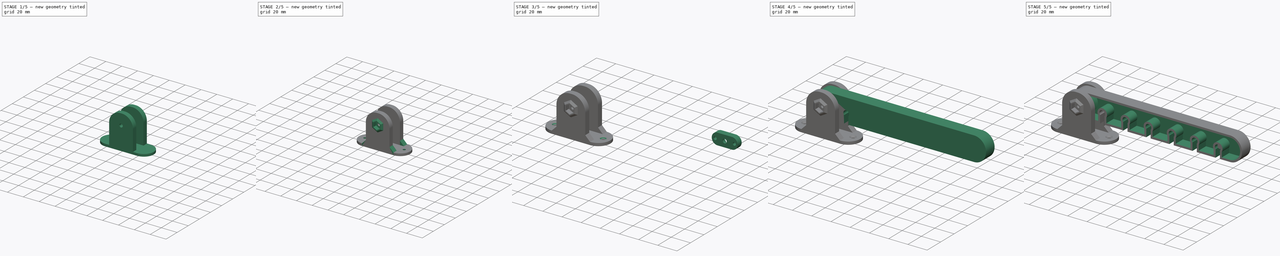
[diagram: build sequence overview — one tinted view per stage of 5, left to right]
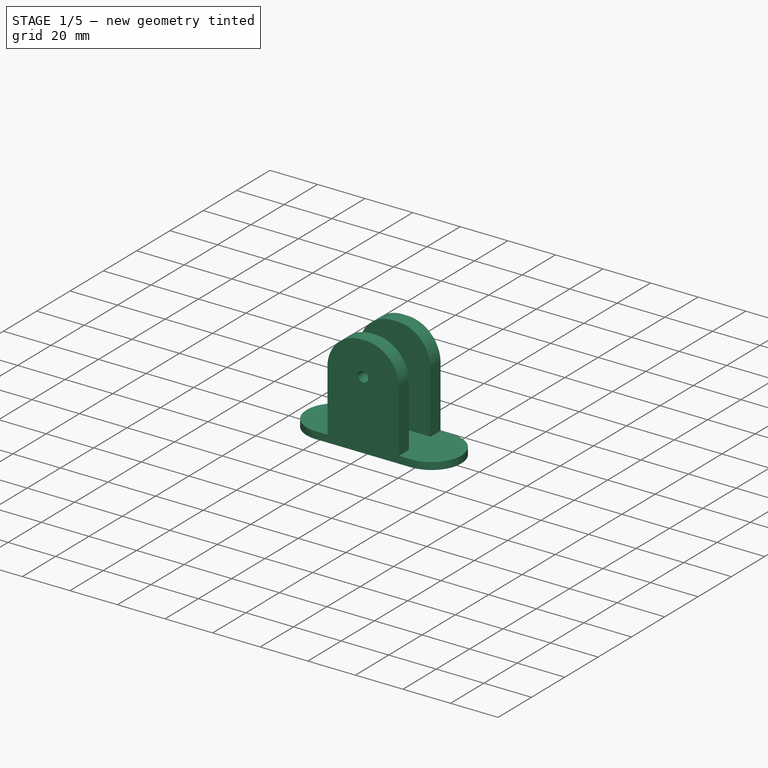
[diagram: stage 1 of 5 — iso view after this stage's code; geometry added in this stage tinted green]
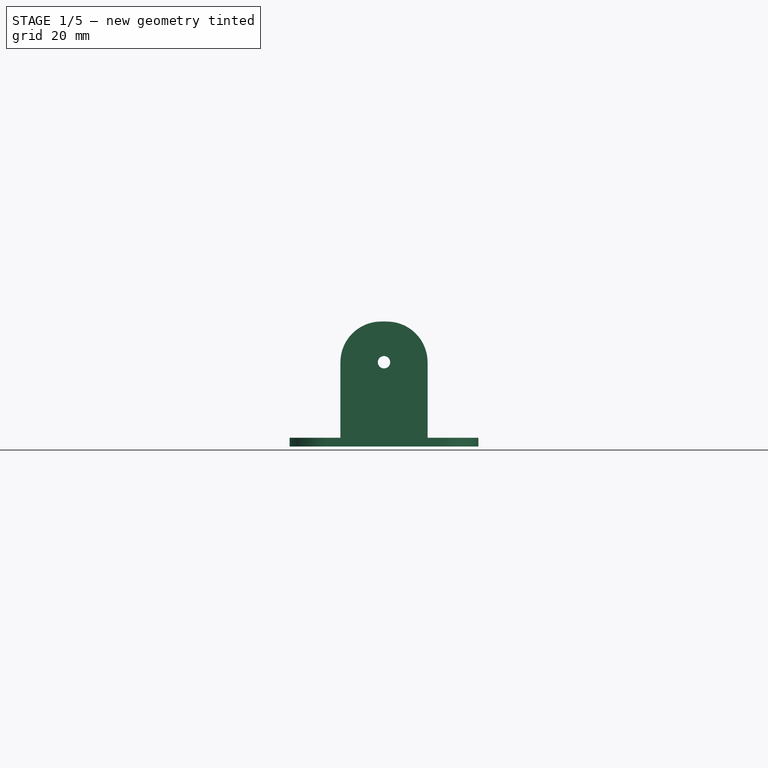
[diagram: stage 1 of 5 — front view after this stage's code; geometry added in this stage tinted green]
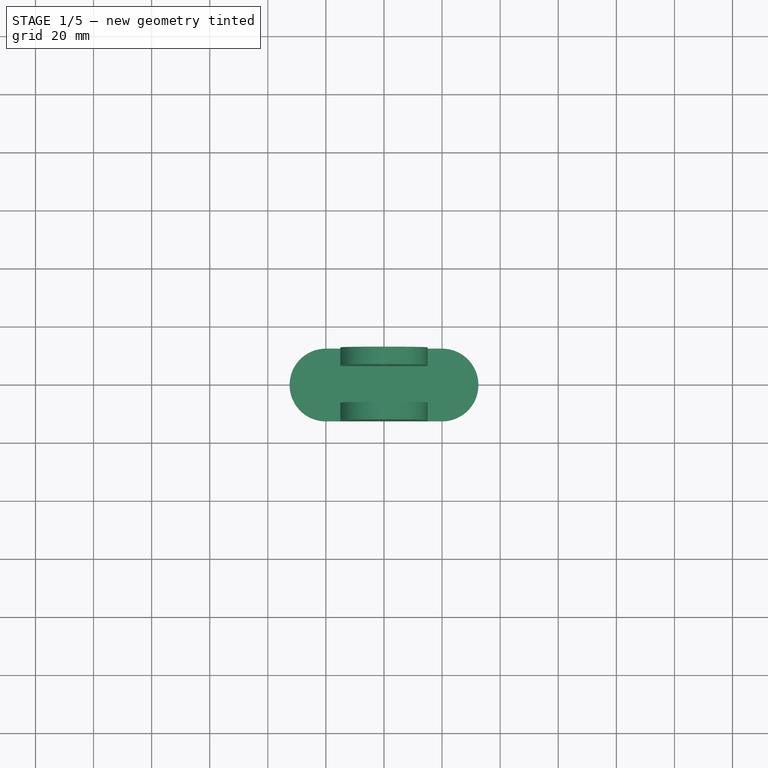
[diagram: stage 1 of 5 — top view after this stage's code; geometry added in this stage tinted green]
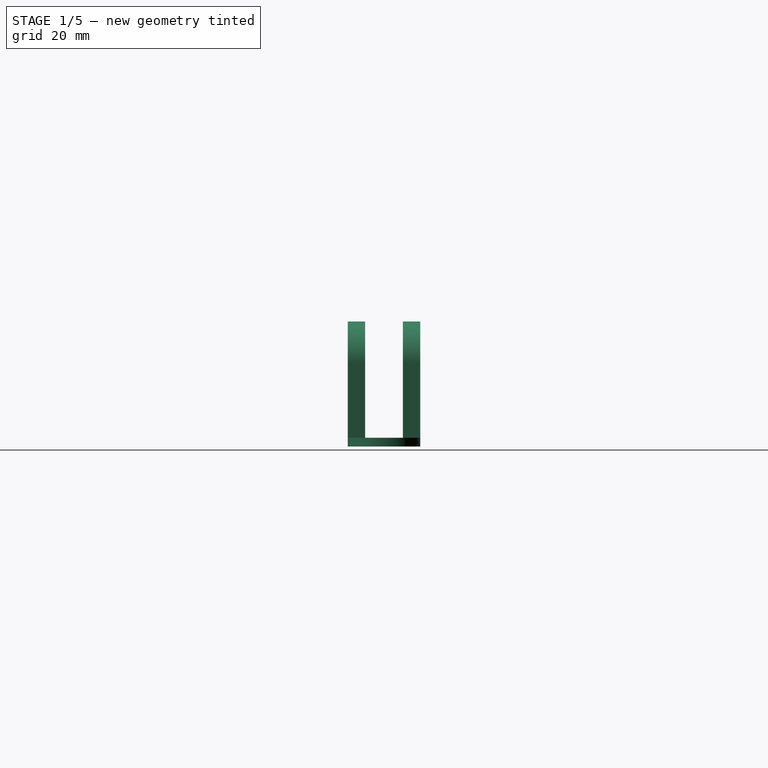
[diagram: stage 1 of 5 — right view after this stage's code; geometry added in this stage tinted green]
FCSTD DOCUMENT  (FreeCAD 0.19R24276 (Git))
Label: laser_cutter_door_latch
License: All rights reserved
LicenseURL: http://en.wikipedia.org/wiki/All_rights_reserved
objects: Sketcher::SketchObject×13, PartDesign::Pad×7, PartDesign::Pocket×5, PartDesign::Chamfer×5, PartDesign::Body×4, PartDesign::ShapeBinder×3, PartDesign::Fillet×2, PartDesign::Hole×1, PartDesign::LinearPattern×1, PartDesign::Thickness×1
note: 63 computed .brp shape members not serialized (recipe doc carries the construction recipe); baked Part::Feature solids carry a one-line shape summary decoded from their .brp

FEATURE [Sketcher::SketchObject] Sketch
  FullyConstrained = true
  MapMode = 5
  Support = -> [XY_Plane]
  sketch-geometry (4):
    g0: ArcOfCircle CenterX=-20 CenterY=0 CenterZ=0 NormalX=0 NormalY=0 NormalZ=1 AngleXU=0 Radius=12.5 StartAngle=1.5708 EndAngle=4.71239
    g1: ArcOfCircle CenterX=20 CenterY=0 CenterZ=0 NormalX=0 NormalY=0 NormalZ=1 AngleXU=0 Radius=12.5 StartAngle=4.71239 EndAngle=7.85398
    g2: LineSegment StartX=-20 StartY=-12.5 StartZ=0 EndX=20 EndY=-12.5 EndZ=0
    g3: LineSegment StartX=-20 StartY=12.5 StartZ=0 EndX=20 EndY=12.5 EndZ=0
  constraints (9):
    c: Tangent(g0,g3) = 1.5708
    c: Tangent(g0,g2) = -1.5708
    c: Tangent(g2,g1) = -1.5708
    c: Tangent(g3,g1) = 1.5708
    c: Horizontal(g2)
    c: PointOnObject(g0,g-1)
    c: Symmetric(g0,g1,g-2)
    c: DistanceY(g1,g1) = 25
    c: DistanceX(g0,g1) = 40
FEATURE [PartDesign::Pad] Pad
  Direction = (1,1,1)
  Length = 3
  Length2 = 100
  Profile = -> Sketch
  Type = 0
FEATURE [Sketcher::SketchObject] Sketch001
  ExternalGeometry = -> [Pad]
  FullyConstrained = true
  MapMode = 5
  Placement = pos=(0,0,3) rot=(0,0,1;0rad)
  Support = -> [Pad]
  sketch-geometry (8):
    g0: LineSegment StartX=-15 StartY=12.5 StartZ=0 EndX=15 EndY=12.5 EndZ=0
    g1: LineSegment StartX=15 StartY=12.5 StartZ=0 EndX=15 EndY=6.5 EndZ=0
    g2: LineSegment StartX=15 StartY=6.5 StartZ=0 EndX=-15 EndY=6.5 EndZ=0
    g3: LineSegment StartX=-15 StartY=6.5 StartZ=0 EndX=-15 EndY=12.5 EndZ=0
    g4: LineSegment StartX=15 StartY=-12.5 StartZ=0 EndX=15 EndY=-6.5 EndZ=0
    g5: LineSegment StartX=15 StartY=-6.5 StartZ=0 EndX=-15 EndY=-6.5 EndZ=0
    g6: LineSegment StartX=-15 StartY=-6.5 StartZ=0 EndX=-15 EndY=-12.5 EndZ=0
    g7: LineSegment StartX=-15 StartY=-12.5 StartZ=0 EndX=15 EndY=-12.5 EndZ=0
  constraints (23):
    c: Coincident(g0,g1)
    c: Coincident(g1,g2)
    c: Coincident(g2,g3)
    c: Coincident(g3,g0)
    c: Horizontal(g2)
    c: Vertical(g1)
    c: Vertical(g3)
    c: DistanceY(g1,g1) = 6
    c: Symmetric(g0,g0,g-2)
    c: Coincident(g4,g5)
    c: Horizontal(g5)
    c: Vertical(g4)
    c: Vertical(g6)
    c: Equal(g4,g1)
    c: Coincident(g5,g6)
    c: Coincident(g7,g6)
    c: Horizontal(g7)
    c: Coincident(g4,g7)
    c: Equal(g2,g5)
    c: Equal(g1,g4)
    c: DistanceX(g0,g0) = 30
    c: PointOnObject(g0,g-3)
    c: Vertical(g2,g5)
FEATURE [PartDesign::Pad] Pad001
  BaseFeature = -> Pad
  Direction = (1,1,1)
  Length = 40
  Length2 = 100
  Profile = -> Sketch001
  Refine = true
  Type = 0
FEATURE [PartDesign::Fillet] Fillet
  Base = -> Pad001 [Edge30,Edge27,Edge34,Edge23]
  BaseFeature = -> Pad001
  Radius = 14
  SupportTransform = false
FEATURE [Sketcher::SketchObject] Sketch002
  ExternalGeometry = -> [Fillet]
  FullyConstrained = true
  MapMode = 5
  Placement = pos=(0,12.5,4e-16) rot=(0,0.707107,0.707107;3.14159rad)
  Support = -> [Fillet]
  expr: Constraints[2] = 4.25 / 2
  sketch-geometry (1):
    g0: Circle CenterX=0 CenterY=29 CenterZ=0 NormalX=0 NormalY=0 NormalZ=1 AngleXU=0 Radius=2.125
  constraints (3):
    c: PointOnObject(g0,g-2)
    c: Horizontal(g0,g-3)
    c: Radius(g0) = 2.125
FEATURE [PartDesign::Hole] Hole
  BaseFeature = -> Fillet
  Depth = 25
  DepthType = 0
  Diameter = 4.25
  DrillForDepth = false
  DrillPoint = 1
  DrillPointAngle = 118
  HoleCutCountersinkAngle = 90
  HoleCutCustomValues = false
  HoleCutDepth = 0
  HoleCutDiameter = 6.1
  HoleCutType = 0
  ModelActualThread = false
  Profile = -> Sketch002
  Tapered = false
  TaperedAngle = 90
  ThreadAngle = 0
  ThreadClass = 0
  ThreadCutOffInner = 0
  ThreadCutOffOuter = 0
  ThreadDirection = 0
  ThreadFit = 0
  ThreadPitch = 0
  ThreadSize = 0
  ThreadType = 0
  Threaded = false
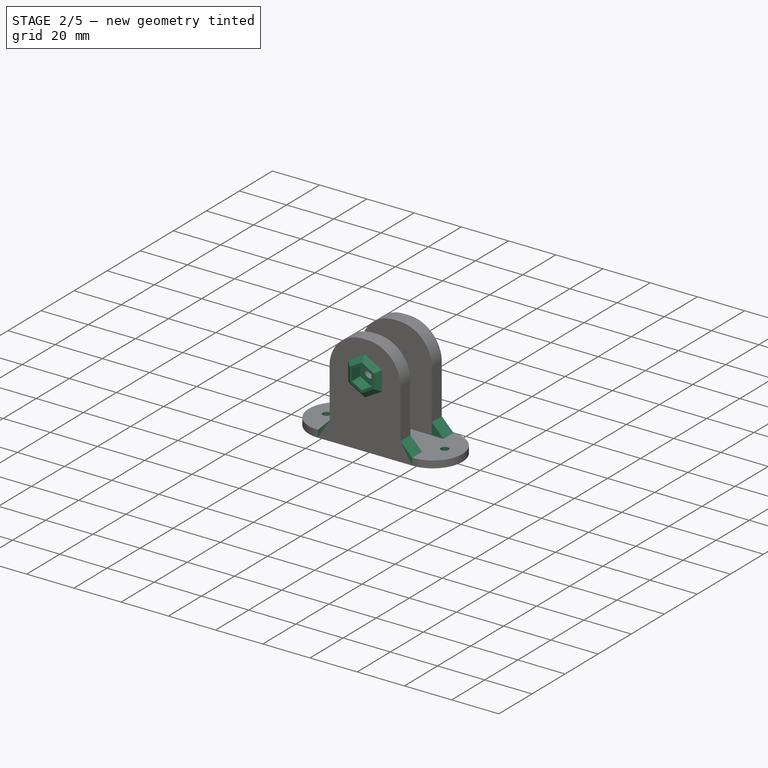
[diagram: stage 2 of 5 — iso view after this stage's code; geometry added in this stage tinted green]
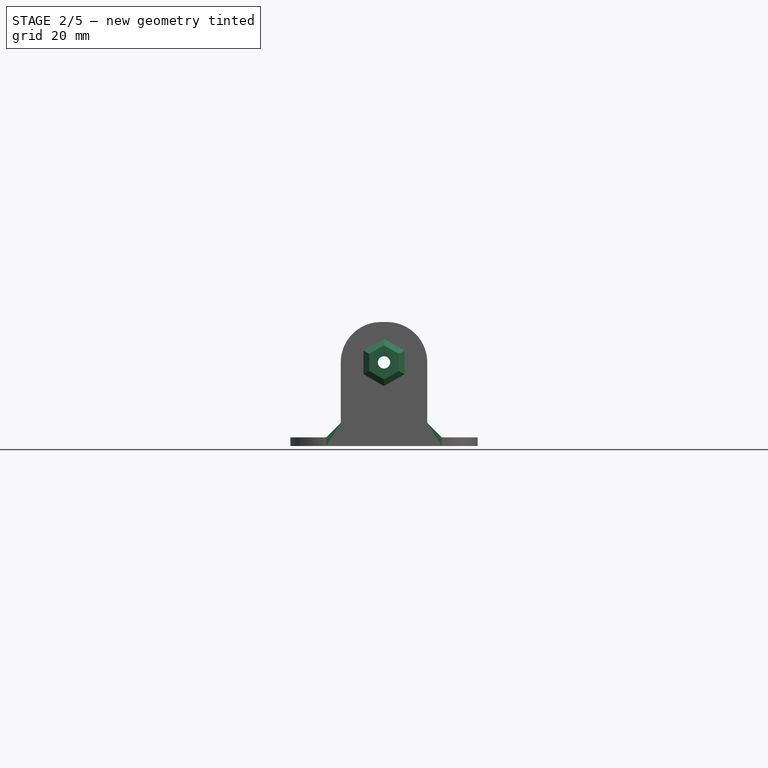
[diagram: stage 2 of 5 — front view after this stage's code; geometry added in this stage tinted green]
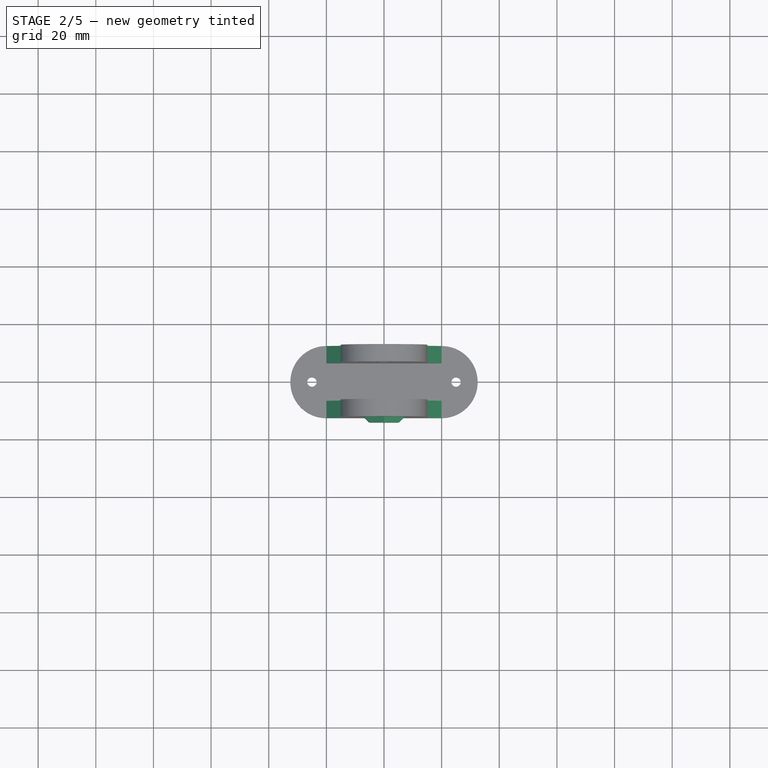
[diagram: stage 2 of 5 — top view after this stage's code; geometry added in this stage tinted green]
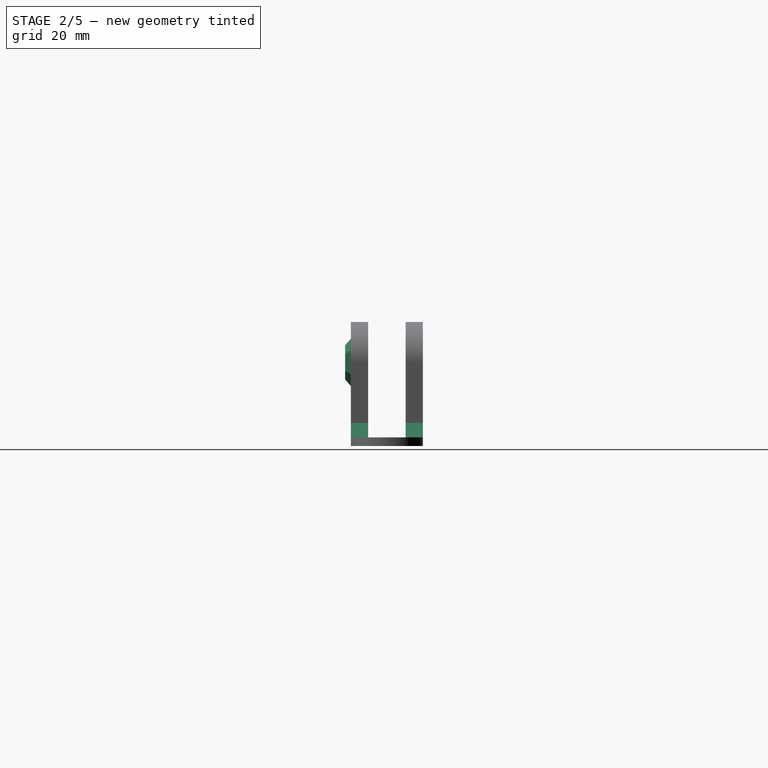
[diagram: stage 2 of 5 — right view after this stage's code; geometry added in this stage tinted green]
FEATURE [Sketcher::SketchObject] Sketch003
  ExternalGeometry = -> [Hole]
  FullyConstrained = true
  MapMode = 5
  Placement = pos=(0,-12.5,-9.121e-13) rot=(1,0,0;1.5708rad)
  Support = -> [Hole]
  sketch-geometry (7):
    g0: LineSegment StartX=4.125 StartY=31.3816 StartZ=0 EndX=0 EndY=33.7631 EndZ=0
    g1: LineSegment StartX=0 StartY=33.7631 StartZ=0 EndX=-4.125 EndY=31.3816 EndZ=0
    g2: LineSegment StartX=-4.125 StartY=31.3816 StartZ=0 EndX=-4.125 EndY=26.6184 EndZ=0
    g3: LineSegment StartX=-4.125 StartY=26.6184 StartZ=0 EndX=9e-16 EndY=24.2369 EndZ=0
    g4: LineSegment StartX=9e-16 StartY=24.2369 StartZ=0 EndX=4.125 EndY=26.6184 EndZ=0
    g5: LineSegment StartX=4.125 StartY=26.6184 StartZ=0 EndX=4.125 EndY=31.3816 EndZ=0
    g6: Circle CenterX=0 CenterY=29 CenterZ=0 NormalX=0 NormalY=0 NormalZ=1 AngleXU=0 Radius=4.76314
  constraints (16):
    c: Coincident(g0,g1)
    c: Coincident(g1,g2)
    c: Coincident(g2,g3)
    c: Coincident(g3,g4)
    c: Coincident(g4,g5)
    c: Coincident(g5,g0)
    c: Equal(g0, g1-g5) x5
    c: PointOnObject(g0,g6)
    c: PointOnObject(g1,g6)
    c: PointOnObject(g2,g6)
    c: PointOnObject(g3,g6)
    c: PointOnObject(g4,g6)
    c: PointOnObject(g5,g6)
    c: Coincident(g6,g-3)
    c: Vertical(g5)
    c: DistanceX(g2,g4) = 8.25
FEATURE [PartDesign::Pocket] Pocket
  BaseFeature = -> Hole
  Length = 3
  Length2 = 100
  Profile = -> Sketch003
  Type = 0
FEATURE [PartDesign::Chamfer] Chamfer
  Angle = 45
  Base = -> Pocket [Edge18,Edge14,Edge3,Edge20]
  BaseFeature = -> Pocket
  ChamferType = 0
  FlipDirection = false
  Size = 5
  Size2 = 1
  SupportTransform = false
FEATURE [Sketcher::SketchObject] Sketch004
  ExternalGeometry = -> [Chamfer]
  FullyConstrained = true
  MapMode = 5
  Placement = pos=(0,-12.5,-9.121e-13) rot=(1,0,0;1.5708rad)
  Support = -> [Chamfer]
  sketch-geometry (14):
    g0: LineSegment StartX=4.125 StartY=31.3816 StartZ=0 EndX=9e-16 EndY=33.7631 EndZ=0
    g1: LineSegment StartX=9e-16 StartY=33.7631 StartZ=0 EndX=-4.125 EndY=31.3816 EndZ=0
    g2: LineSegment StartX=-4.125 StartY=31.3816 StartZ=0 EndX=-4.125 EndY=26.6184 EndZ=0
    g3: LineSegment StartX=-4.125 StartY=26.6184 StartZ=0 EndX=0 EndY=24.2369 EndZ=0
    g4: LineSegment StartX=0 StartY=24.2369 StartZ=0 EndX=4.125 EndY=26.6184 EndZ=0
    g5: LineSegment StartX=4.125 StartY=26.6184 StartZ=0 EndX=4.125 EndY=31.3816 EndZ=0
    g6: Circle CenterX=0 CenterY=29 CenterZ=0 NormalX=0 NormalY=0 NormalZ=1 AngleXU=0 Radius=4.76314
    g7: LineSegment StartX=5.125 StartY=31.9589 StartZ=0 EndX=-9e-16 EndY=34.9178 EndZ=0
    g8: LineSegment StartX=-9e-16 StartY=34.9178 StartZ=0 EndX=-5.125 EndY=31.9589 EndZ=0
    g9: LineSegment StartX=-5.125 StartY=31.9589 StartZ=0 EndX=-5.125 EndY=26.0411 EndZ=0
    g10: LineSegment StartX=-5.125 StartY=26.0411 StartZ=0 EndX=-9e-16 EndY=23.0822 EndZ=0
    g11: LineSegment StartX=-9e-16 StartY=23.0822 StartZ=0 EndX=5.125 EndY=26.0411 EndZ=0
    g12: LineSegment StartX=5.125 StartY=26.0411 StartZ=0 EndX=5.125 EndY=31.9589 EndZ=0
    g13: Circle CenterX=0 CenterY=29 CenterZ=0 NormalX=0 NormalY=0 NormalZ=1 AngleXU=0 Radius=5.91784
  constraints (32):
    c: Coincident(g0,g1)
    c: Coincident(g1,g2)
    c: Coincident(g2,g3)
    c: Coincident(g3,g4)
    c: Coincident(g4,g5)
    c: Coincident(g5,g0)
    c: Equal(g0, g1-g5) x5
    c: PointOnObject(g0,g6)
    c: PointOnObject(g1,g6)
    c: PointOnObject(g2,g6)
    c: PointOnObject(g3,g6)
    c: PointOnObject(g4,g6)
    c: PointOnObject(g5,g6)
    c: Coincident(g6,g-3)
    c: Coincident(g7,g8)
    c: Coincident(g8,g9)
    c: Coincident(g9,g10)
    c: Coincident(g10,g11)
    c: Coincident(g11,g12)
    c: Coincident(g12,g7)
    c: Equal(g7, g8-g12) x5
    c: PointOnObject(g7,g13)
    c: PointOnObject(g8,g13)
    c: PointOnObject(g9,g13)
    c: PointOnObject(g10,g13)
    c: PointOnObject(g11,g13)
    c: PointOnObject(g12,g13)
    c: Coincident(g13,g6)
    c: Vertical(g5)
    c: Vertical(g12)
    c: DistanceX(g2,g4) = 8.25
    c: DistanceX(g9,g11) = 10.25
FEATURE [PartDesign::Pad] Pad002
  BaseFeature = -> Chamfer
  Direction = (1,1,1)
  Length = 2
  Length2 = 100
  Profile = -> Sketch004
  Type = 0
FEATURE [PartDesign::Chamfer] Chamfer001
  Angle = 45
  Base = -> Pad002 [Edge61,Edge66,Edge65,Edge64,Edge63,Edge62]
  BaseFeature = -> Pad002
  ChamferType = 0
  FlipDirection = false
  Size = 1.99
  Size2 = 1
  SupportTransform = false
FEATURE [PartDesign::Body] Body003  label="side_fixture"
  Group = -> [CopyPad005,Sketch009,Pad006,Sketch010,Pocket002,Sketch011,Pocket003,Chamfer003]
  Origin = -> Origin003
  Placement = pos=(0,-3,0) rot=(0,0,1;0rad)
  Tip = -> Chamfer003
FEATURE [Sketcher::SketchObject] Sketch012
  FullyConstrained = true
  MapMode = 5
  Placement = pos=(0,0,3) rot=(0,0,1;0rad)
  Support = -> [Chamfer001]
  expr: Constraints[1] = 3.25 / 2
  sketch-geometry (2):
    g0: Circle CenterX=-25 CenterY=0 CenterZ=0 NormalX=0 NormalY=0 NormalZ=1 AngleXU=0 Radius=1.625
    g1: Circle CenterX=25 CenterY=0 CenterZ=0 NormalX=0 NormalY=0 NormalZ=1 AngleXU=0 Radius=1.625
  constraints (5):
    c: PointOnObject(g0,g-1)
    c: Radius(g0) = 1.625
    c: Equal(g0,g1)
    c: Symmetric(g0,g1,g-1)
    c: DistanceX(g0,g-1) = 25
FEATURE [PartDesign::Pocket] Pocket004
  BaseFeature = -> Chamfer001
  Length = 5
  Length2 = 100
  Profile = -> Sketch012
  Type = 1
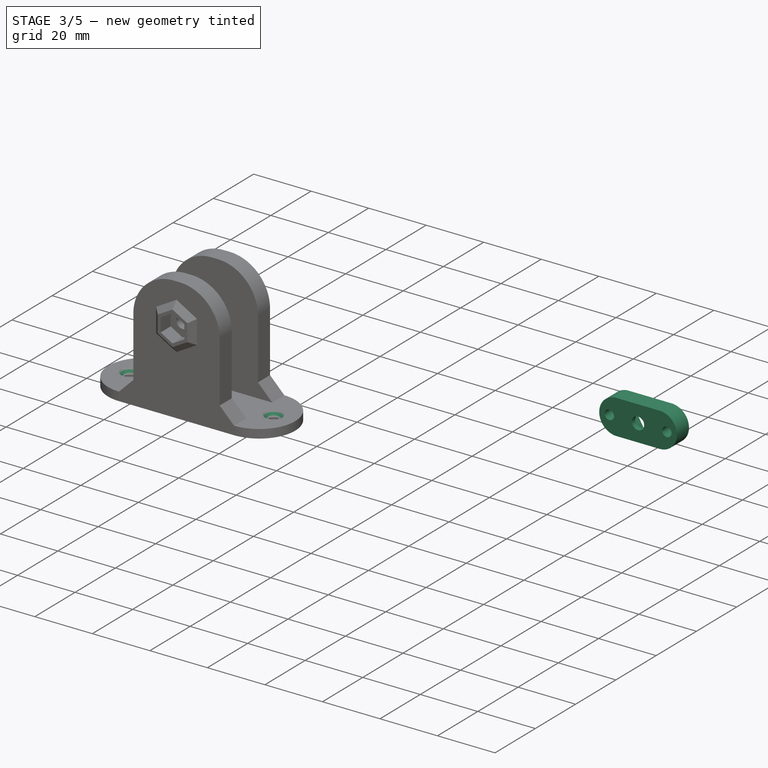
[diagram: stage 3 of 5 — iso view after this stage's code; geometry added in this stage tinted green]
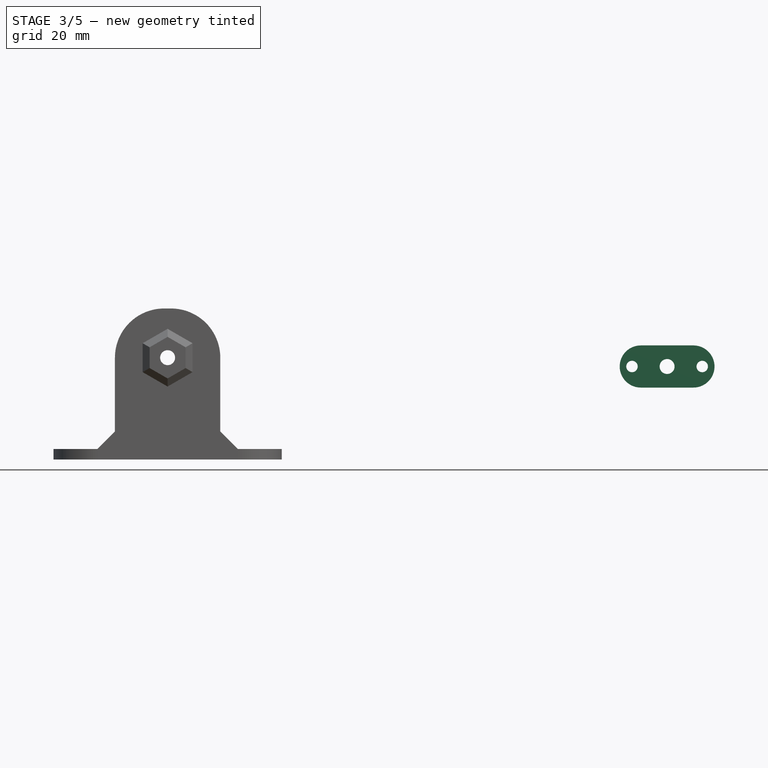
[diagram: stage 3 of 5 — front view after this stage's code; geometry added in this stage tinted green]
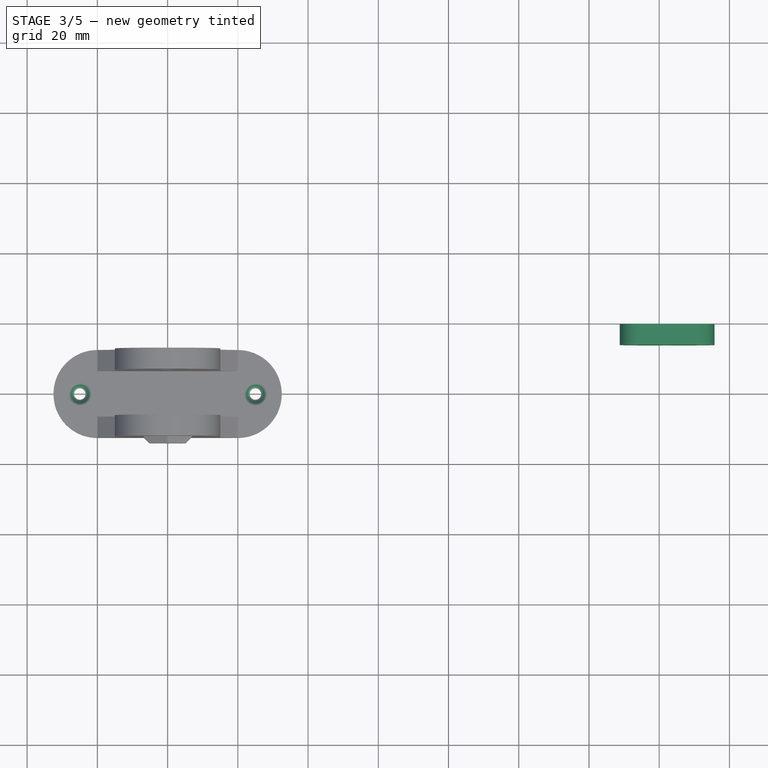
[diagram: stage 3 of 5 — top view after this stage's code; geometry added in this stage tinted green]
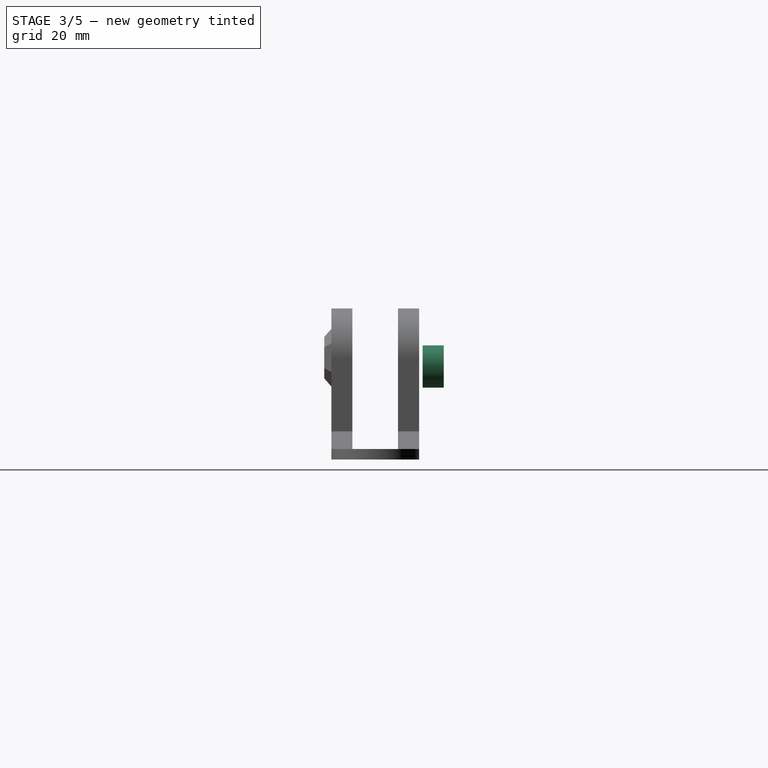
[diagram: stage 3 of 5 — right view after this stage's code; geometry added in this stage tinted green]
FEATURE [PartDesign::Body] Body002  label="screw"
  Group = -> [CopyFillet001,Sketch007,Pad004,Sketch008,Pad005]
  Origin = -> Origin002
  Placement = pos=(0,-4,0) rot=(0,0,1;0rad)
  Tip = -> Pad005
FEATURE [PartDesign::ShapeBinder] CopyPad005
  TraceSupport = false
FEATURE [Sketcher::SketchObject] Sketch009
  ExternalGeometry = -> [CopyPad005]
  FullyConstrained = true
  MapMode = 5
  Placement = pos=(0,16.5,0) rot=(1,0,0;1.5708rad)
  Support = -> [CopyPad005]
  expr: Constraints[1] = 4.25 / 2
  sketch-geometry (5):
    g0: Circle CenterX=142.25 CenterY=26.4843 CenterZ=0 NormalX=0 NormalY=0 NormalZ=1 AngleXU=0 Radius=2.125
    g1: ArcOfCircle CenterX=134.75 CenterY=26.4843 CenterZ=0 NormalX=0 NormalY=0 NormalZ=1 AngleXU=0 Radius=6 StartAngle=1.5708 EndAngle=4.71239
    g2: ArcOfCircle CenterX=149.75 CenterY=26.4843 CenterZ=0 NormalX=0 NormalY=0 NormalZ=1 AngleXU=0 Radius=6 StartAngle=4.71239 EndAngle=7.85398
    g3: LineSegment StartX=134.75 StartY=20.4843 StartZ=0 EndX=149.75 EndY=20.4843 EndZ=0
    g4: LineSegment StartX=134.75 StartY=32.4843 StartZ=0 EndX=149.75 EndY=32.4843 EndZ=0
  constraints (11):
    c: Coincident(g0,g-3)
    c: Radius(g0) = 2.125
    c: Tangent(g1,g4) = 1.5708
    c: Tangent(g1,g3) = -1.5708
    c: Tangent(g3,g2) = -1.5708
    c: Tangent(g4,g2) = 1.5708
    c: Horizontal(g3)
    c: Equal(g1,g2)
    c: Symmetric(g2,g1,g0)
    c: DistanceY(g2,g2) = 12
    c: DistanceX(g1,g2) = 15
FEATURE [PartDesign::Pad] Pad006
  Direction = (1,1,1)
  Length = 6
  Length2 = 100
  Midplane = true
  Profile = -> Sketch009
  Type = 0
FEATURE [Sketcher::SketchObject] Sketch010
  ExternalGeometry = -> [Pad006]
  FullyConstrained = true
  MapMode = 5
  Placement = pos=(0,19.5,-6.4e-15) rot=(0,0.707107,0.707107;3.14159rad)
  Support = -> [Pad006]
  sketch-geometry (7):
    g0: LineSegment StartX=-137.487 StartY=26.4843 StartZ=0 EndX=-139.868 EndY=30.6093 EndZ=0
    g1: LineSegment StartX=-139.868 StartY=30.6093 StartZ=0 EndX=-144.632 EndY=30.6093 EndZ=0
    g2: LineSegment StartX=-144.632 StartY=30.6093 StartZ=0 EndX=-147.013 EndY=26.4843 EndZ=0
    g3: LineSegment StartX=-147.013 StartY=26.4843 StartZ=0 EndX=-144.632 EndY=22.3593 EndZ=0
    g4: LineSegment StartX=-144.632 StartY=22.3593 StartZ=0 EndX=-139.868 EndY=22.3593 EndZ=0
    g5: LineSegment StartX=-139.868 StartY=22.3593 StartZ=0 EndX=-137.487 EndY=26.4843 EndZ=0
    g6: Circle CenterX=-142.25 CenterY=26.4843 CenterZ=0 NormalX=0 NormalY=0 NormalZ=1 AngleXU=0 Radius=4.76314
  constraints (16):
    c: Coincident(g0,g1)
    c: Coincident(g1,g2)
    c: Coincident(g2,g3)
    c: Coincident(g3,g4)
    c: Coincident(g4,g5)
    c: Coincident(g5,g0)
    c: Equal(g0, g1-g5) x5
    c: PointOnObject(g0,g6)
    c: PointOnObject(g1,g6)
    c: PointOnObject(g2,g6)
    c: PointOnObject(g3,g6)
    c: PointOnObject(g4,g6)
    c: PointOnObject(g5,g6)
    c: Coincident(g6,g-3)
    c: Horizontal(g4)
    c: DistanceY(g3,g1) = 8.25
FEATURE [PartDesign::Pocket] Pocket002
  BaseFeature = -> Pad006
  Length = 4.3
  Length2 = 100
  Profile = -> Sketch010
  Type = 0
FEATURE [Sketcher::SketchObject] Sketch011
  ExternalGeometry = -> [Pocket002]
  FullyConstrained = true
  MapMode = 5
  Placement = pos=(0,13.5,-4.5e-15) rot=(1,0,0;1.5708rad)
  Support = -> [Pocket002]
  expr: Constraints[3] = 3.25 / 2
  sketch-geometry (2):
    g0: Circle CenterX=132.25 CenterY=26.4843 CenterZ=0 NormalX=0 NormalY=0 NormalZ=1 AngleXU=0 Radius=1.625
    g1: Circle CenterX=152.25 CenterY=26.4843 CenterZ=0 NormalX=0 NormalY=0 NormalZ=1 AngleXU=0 Radius=1.625
  constraints (5):
    c: Horizontal(g0,g1)
    c: Symmetric(g1,g0,g-3)
    c: DistanceX(g0,g-3) = 10
    c: Radius(g1) = 1.625
    c: Equal(g1,g0)
FEATURE [PartDesign::Pocket] Pocket003
  BaseFeature = -> Pocket002
  Length = 5
  Length2 = 100
  Profile = -> Sketch011
  Type = 1
FEATURE [PartDesign::Chamfer] Chamfer004
  Angle = 45
  Base = -> Pocket004 [Edge74,Edge75]
  BaseFeature = -> Pocket004
  ChamferType = 0
  FlipDirection = false
  Size = 1.5
  Size2 = 1
  SupportTransform = false
FEATURE [PartDesign::Body] Body  label="latch_base"
  Group = -> [Sketch,Pad,Sketch001,Pad001,Fillet,Sketch002,Hole,Sketch003,Pocket,Chamfer,Sketch004,Pad002,Chamfer001,Sketch012,Pocket004,Chamfer004]
  Origin = -> Origin
  Tip = -> Chamfer004
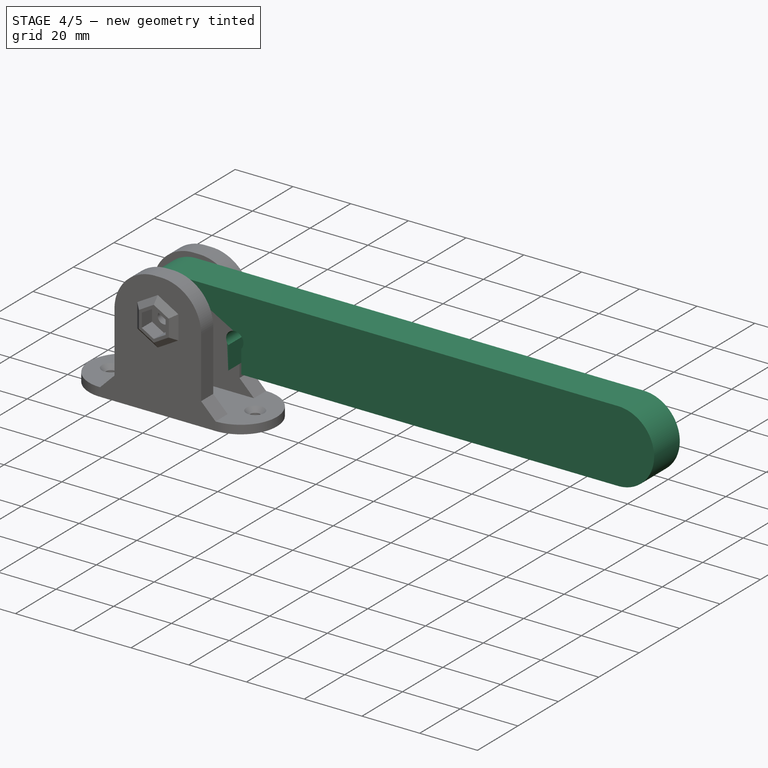
[diagram: stage 4 of 5 — iso view after this stage's code; geometry added in this stage tinted green]
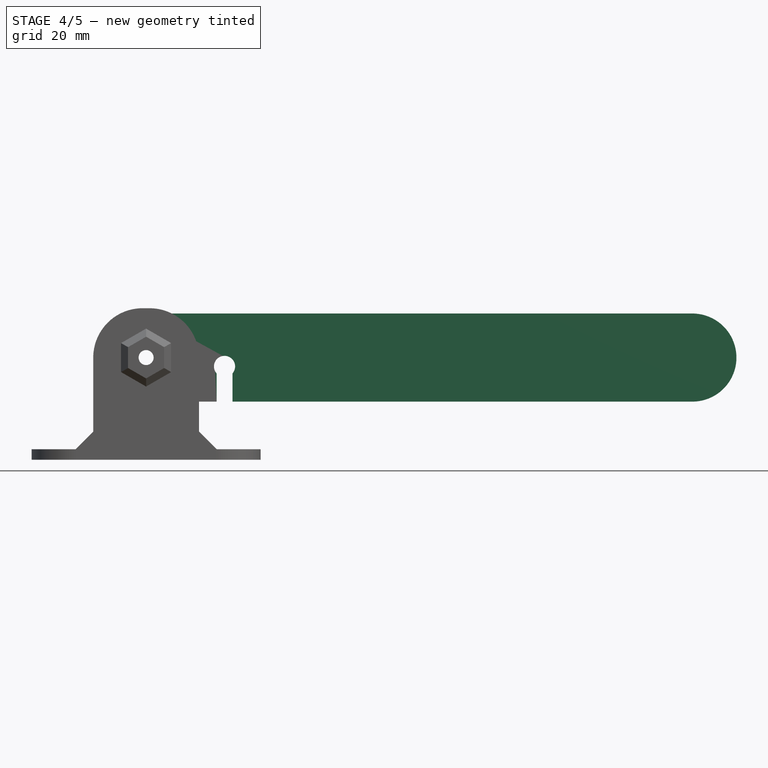
[diagram: stage 4 of 5 — front view after this stage's code; geometry added in this stage tinted green]
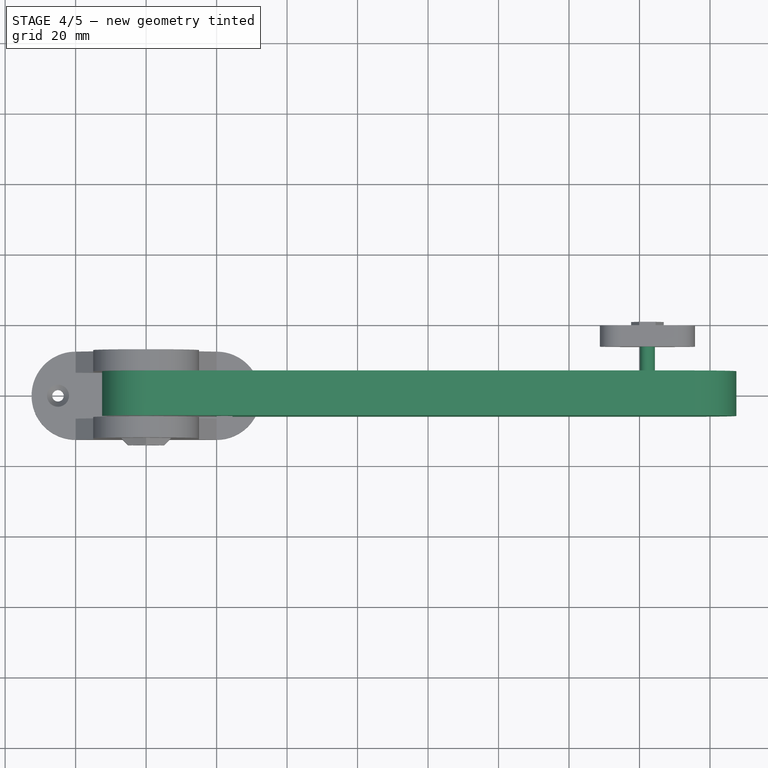
[diagram: stage 4 of 5 — top view after this stage's code; geometry added in this stage tinted green]
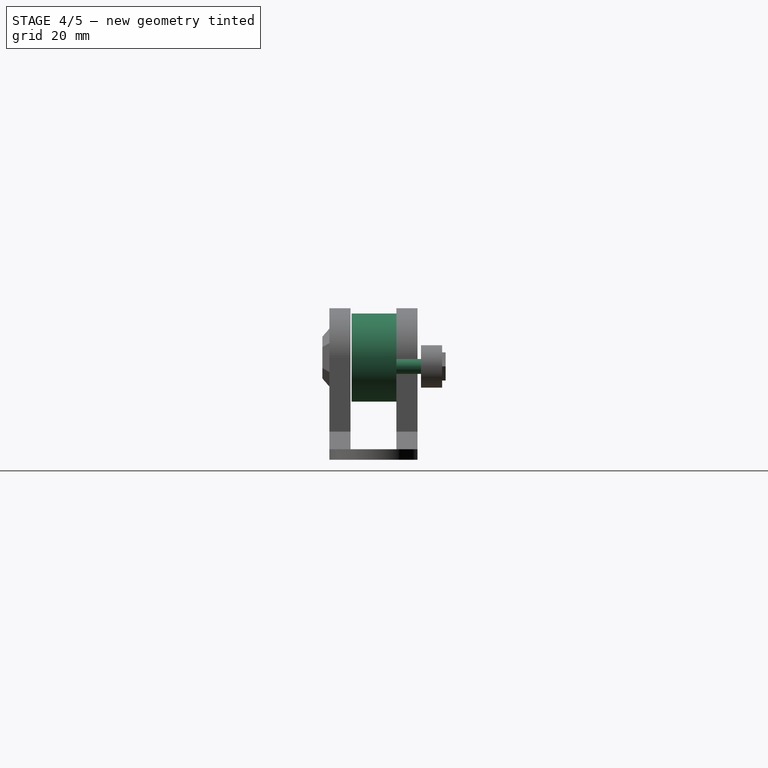
[diagram: stage 4 of 5 — right view after this stage's code; geometry added in this stage tinted green]
FEATURE [PartDesign::ShapeBinder] CopyChamfer001
  TraceSupport = false
FEATURE [Sketcher::SketchObject] Sketch005
  ExternalGeometry = -> [CopyChamfer001]
  FullyConstrained = true
  MapMode = 5
  Placement = pos=(0,6.5,0) rot=(1,0,0;1.5708rad)
  Support = -> [CopyChamfer001]
  expr: Constraints[8] = 4.4 / 2
  expr: Constraints[10] = 180 - 25
  sketch-geometry (5):
    g0: ArcOfCircle CenterX=0 CenterY=29 CenterZ=0 NormalX=0 NormalY=0 NormalZ=1 AngleXU=0 Radius=12.5 StartAngle=1.5708 EndAngle=4.71239
    g1: ArcOfCircle CenterX=155 CenterY=29 CenterZ=0 NormalX=0 NormalY=0 NormalZ=1 AngleXU=0 Radius=12.5 StartAngle=4.71239 EndAngle=7.85398
    g2: LineSegment StartX=-2.3e-15 StartY=16.5 StartZ=0 EndX=155 EndY=16.5 EndZ=0
    g3: LineSegment StartX=-2e-15 StartY=41.5 StartZ=0 EndX=155 EndY=41.5 EndZ=0
    g4: Circle CenterX=0 CenterY=29 CenterZ=0 NormalX=0 NormalY=0 NormalZ=1 AngleXU=0 Radius=2.2
  constraints (11):
    c: Tangent(g0,g3) = 1.5708
    c: Tangent(g0,g2) = -1.5708
    c: Tangent(g2,g1) = -1.5708
    c: Tangent(g3,g1) = 1.5708
    c: Horizontal(g2)
    c: Equal(g0,g1)
    c: Coincident(g0,g-3)
    c: Coincident(g4,g0)
    c: Radius(g4) = 2.2
    c: DistanceY(g1,g1) = 25
    c: DistanceX(g0,g1) = 155
FEATURE [PartDesign::Pad] Pad003
  Direction = (1,1,1)
  Length = 12.7
  Length2 = 100
  Profile = -> Sketch005
  Type = 0
FEATURE [Sketcher::SketchObject] Sketch006
  ExternalGeometry = -> [Pad003]
  FullyConstrained = true
  MapMode = 5
  Placement = pos=(0,-6.2,1.3e-15) rot=(1,0,0;1.5708rad)
  Support = -> [Pad003]
  sketch-geometry (5):
    g0: ArcOfCircle CenterX=22.25 CenterY=24.5 CenterZ=0 NormalX=0 NormalY=0 NormalZ=1 AngleXU=0 Radius=2.25 StartAngle=0 EndAngle=3.14159
    g1: LineSegment StartX=20 StartY=24.5 StartZ=0 EndX=20 EndY=16.5 EndZ=0
    g2: LineSegment StartX=20 StartY=16.5 StartZ=0 EndX=24.5 EndY=16.5 EndZ=0
    g3: LineSegment StartX=24.5 StartY=16.5 StartZ=0 EndX=24.5 EndY=24.5 EndZ=0
    g4: ArcOfCircle CenterX=22.25 CenterY=26.4843 CenterZ=0 NormalX=0 NormalY=0 NormalZ=1 AngleXU=0 Radius=3 StartAngle=5.56045 EndAngle=10.1475
  constraints (15):
    c: Tangent(g0,g1) = -1.5708
    c: Coincident(g1,g2)
    c: Horizontal(g2)
    c: Coincident(g2,g3)
    c: Coincident(g3,g0)
    c: Vertical(g1)
    c: Vertical(g3)
    c: Equal(g3,g1)
    c: DistanceX(g2,g2) = 4.5
    c: DistanceY(g3,g3) = 8
    c: PointOnObject(g2,g-3)
    c: DistanceX(g-4,g1) = 20
    c: Coincident(g4,g1)
    c: Coincident(g4,g3)
    c: Radius(g4) = 3
FEATURE [PartDesign::Pocket] Pocket001
  BaseFeature = -> Pad003
  Length = 5
  Length2 = 100
  Profile = -> Sketch006
  Type = 1
FEATURE [PartDesign::Body] Body001  label="latch"
  Group = -> [CopyChamfer001,Sketch005,Pad003,Sketch006,Pocket001,LinearPattern,Thickness,Chamfer002,Fillet001]
  Origin = -> Origin001
  Tip = -> Fillet001
FEATURE [PartDesign::ShapeBinder] CopyFillet001
  TraceSupport = false
FEATURE [Sketcher::SketchObject] Sketch007
  ExternalGeometry = -> [CopyFillet001]
  FullyConstrained = true
  MapMode = 5
  Placement = pos=(0,6.5,-1.4e-15) rot=(0,0.707107,0.707107;3.14159rad)
  Support = -> [CopyFillet001]
  expr: Constraints[1] = 4.25 / 2
  sketch-geometry (1):
    g0: Circle CenterX=-142.25 CenterY=26.4843 CenterZ=0 NormalX=0 NormalY=0 NormalZ=1 AngleXU=0 Radius=2.125
  constraints (2):
    c: Coincident(g0,g-3)
    c: Radius(g0) = 2.125
FEATURE [PartDesign::Pad] Pad004
  Direction = (1,1,1)
  Length = 20
  Length2 = 100
  Midplane = true
  Profile = -> Sketch007
  Type = 0
FEATURE [Sketcher::SketchObject] Sketch008
  ExternalGeometry = -> [Pad004]
  FullyConstrained = true
  MapMode = 5
  Placement = pos=(2.3e-15,16.5,-4e-15) rot=(0,0.707107,0.707107;3.14159rad)
  Support = -> [Pad004]
  sketch-geometry (7):
    g0: LineSegment StartX=-146.869 StartY=26.4843 StartZ=0 EndX=-144.559 EndY=22.4843 EndZ=0
    g1: LineSegment StartX=-144.559 StartY=22.4843 StartZ=0 EndX=-139.941 EndY=22.4843 EndZ=0
    g2: LineSegment StartX=-139.941 StartY=22.4843 StartZ=0 EndX=-137.631 EndY=26.4843 EndZ=0
    g3: LineSegment StartX=-137.631 StartY=26.4843 StartZ=0 EndX=-139.941 EndY=30.4843 EndZ=0
    g4: LineSegment StartX=-139.941 StartY=30.4843 StartZ=0 EndX=-144.559 EndY=30.4843 EndZ=0
    g5: LineSegment StartX=-144.559 StartY=30.4843 StartZ=0 EndX=-146.869 EndY=26.4843 EndZ=0
    g6: Circle CenterX=-142.25 CenterY=26.4843 CenterZ=0 NormalX=0 NormalY=0 NormalZ=1 AngleXU=0 Radius=4.6188
  constraints (16):
    c: Coincident(g0,g1)
    c: Coincident(g1,g2)
    c: Coincident(g2,g3)
    c: Coincident(g3,g4)
    c: Coincident(g4,g5)
    c: Coincident(g5,g0)
    c: Equal(g0, g1-g5) x5
    c: PointOnObject(g0,g6)
    c: PointOnObject(g1,g6)
    c: PointOnObject(g2,g6)
    c: PointOnObject(g3,g6)
    c: PointOnObject(g4,g6)
    c: PointOnObject(g5,g6)
    c: Coincident(g6,g-3)
    c: Horizontal(g1)
    c: DistanceY(g1,g3) = 8
FEATURE [PartDesign::Pad] Pad005
  BaseFeature = -> Pad004
  Direction = (1,1,1)
  Length = 4
  Length2 = 100
  Profile = -> Sketch008
  Refine = true
  Type = 0
FEATURE [PartDesign::Chamfer] Chamfer003
  Angle = 45
  Base = -> Pocket003 [Edge21,Edge22]
  BaseFeature = -> Pocket003
  ChamferType = 0
  FlipDirection = false
  Size = 1.5
  Size2 = 1
  SupportTransform = false
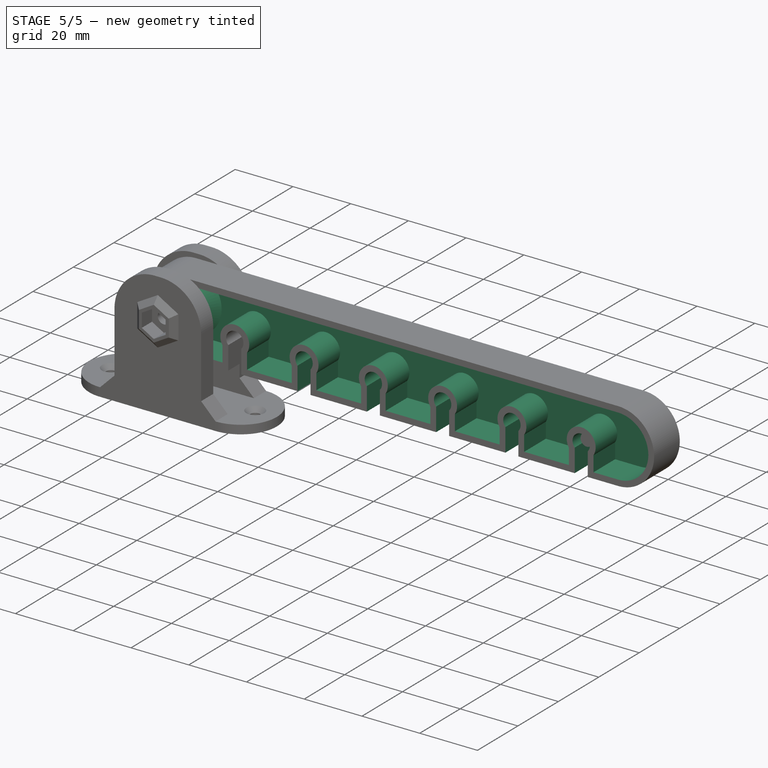
[diagram: stage 5 of 5 — iso view after this stage's code; geometry added in this stage tinted green]
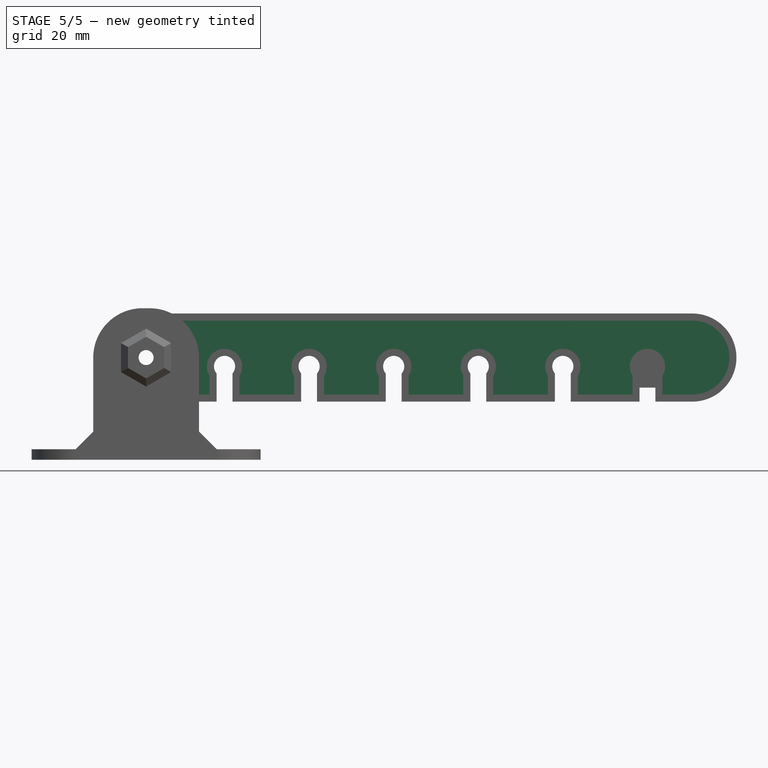
[diagram: stage 5 of 5 — front view after this stage's code; geometry added in this stage tinted green]
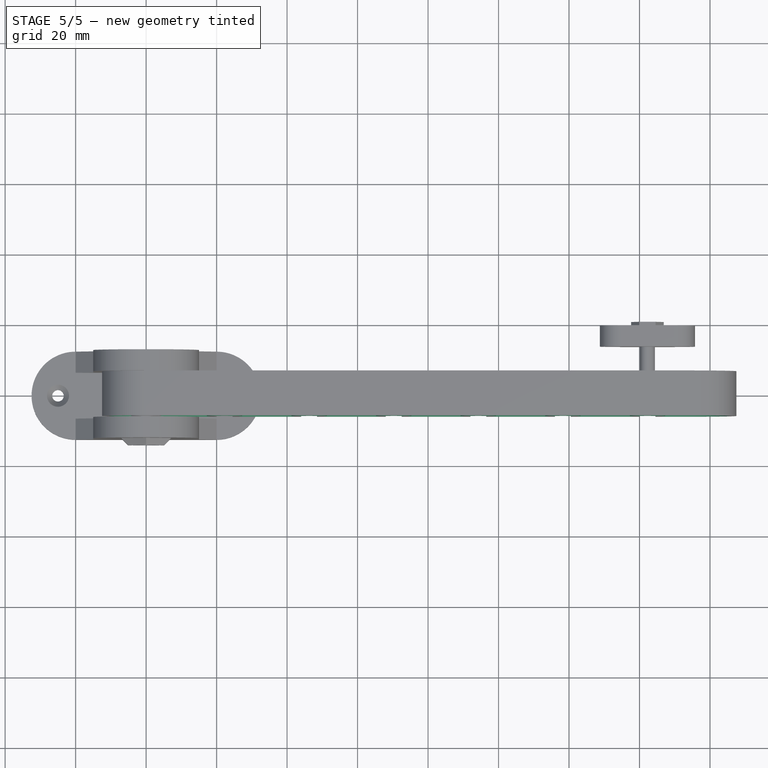
[diagram: stage 5 of 5 — top view after this stage's code; geometry added in this stage tinted green]
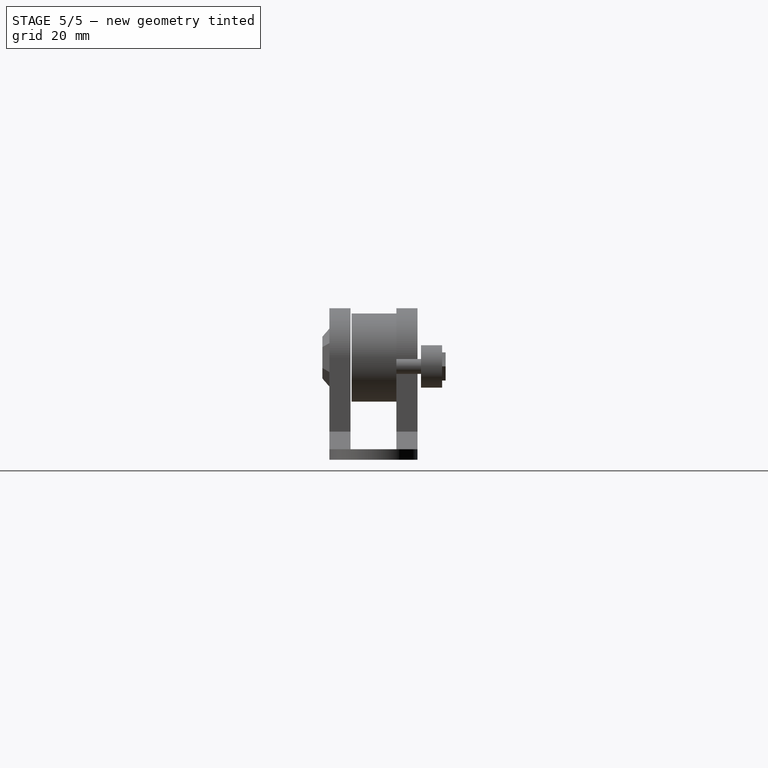
[diagram: stage 5 of 5 — right view after this stage's code; geometry added in this stage tinted green]
FEATURE [PartDesign::LinearPattern] LinearPattern
  BaseFeature = -> Pocket001
  Direction = -> Sketch006 [H_Axis]
  Length = 120
  Occurrences = 6
  Originals = -> [Pocket001]
FEATURE [PartDesign::Thickness] Thickness
  Base = -> LinearPattern [Face5]
  BaseFeature = -> LinearPattern
  Intersection = false
  Join = 0
  Mode = 0
  Reversed = true
  SupportTransform = false
  Value = 2
FEATURE [PartDesign::Chamfer] Chamfer002
  Angle = 45
  Base = -> Thickness [Edge172]
  BaseFeature = -> Thickness
  ChamferType = 0
  FlipDirection = false
  Size = 6
  Size2 = 1
  SupportTransform = false
FEATURE [PartDesign::Fillet] Fillet001
  Base = -> Chamfer002 [Edge31]
  BaseFeature = -> Chamfer002
  Radius = 11
  SupportTransform = false
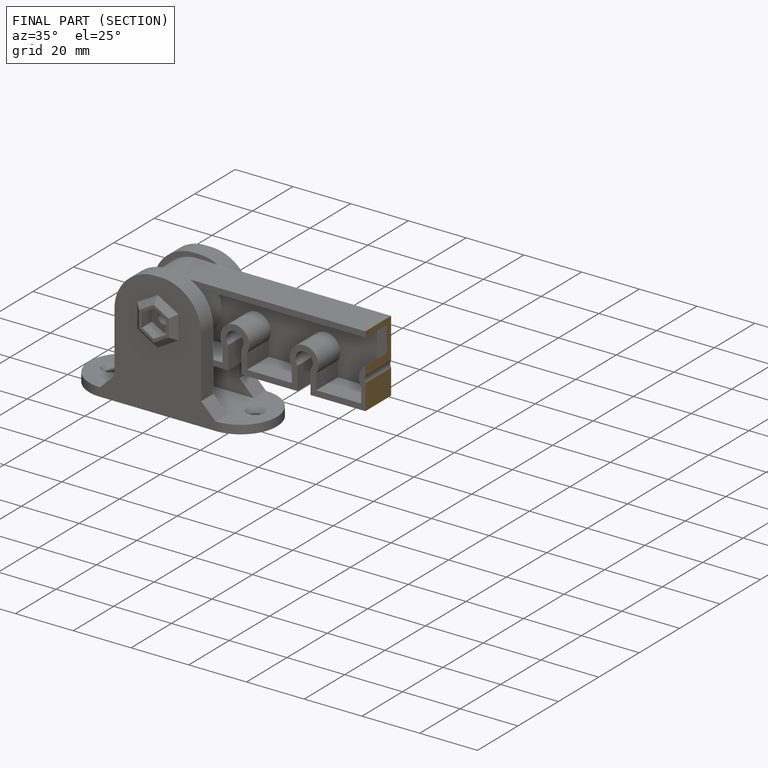
[diagram: finished part — half-section view (interior)]
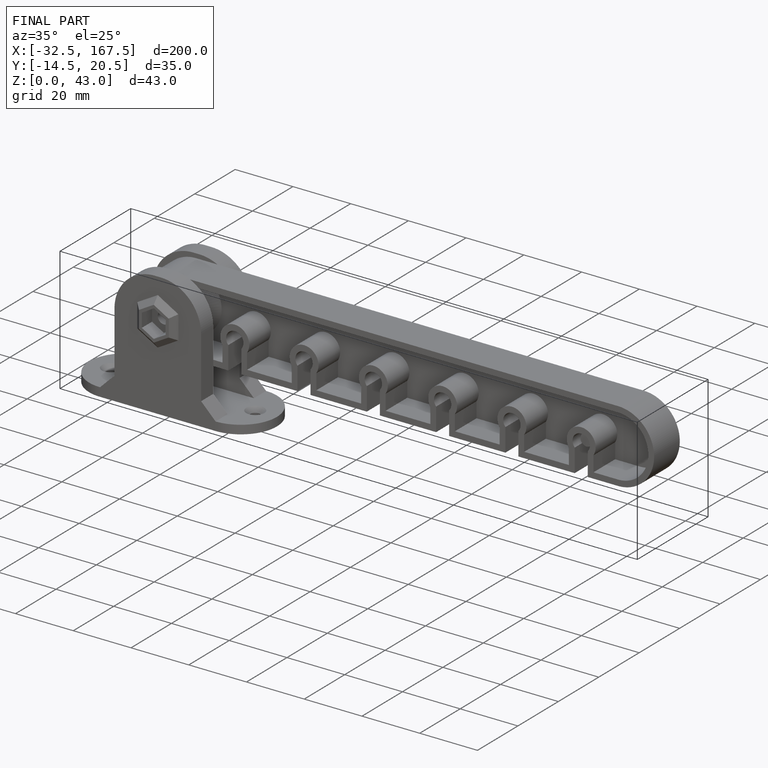
[diagram: finished part — iso view with bounding-box wireframe]
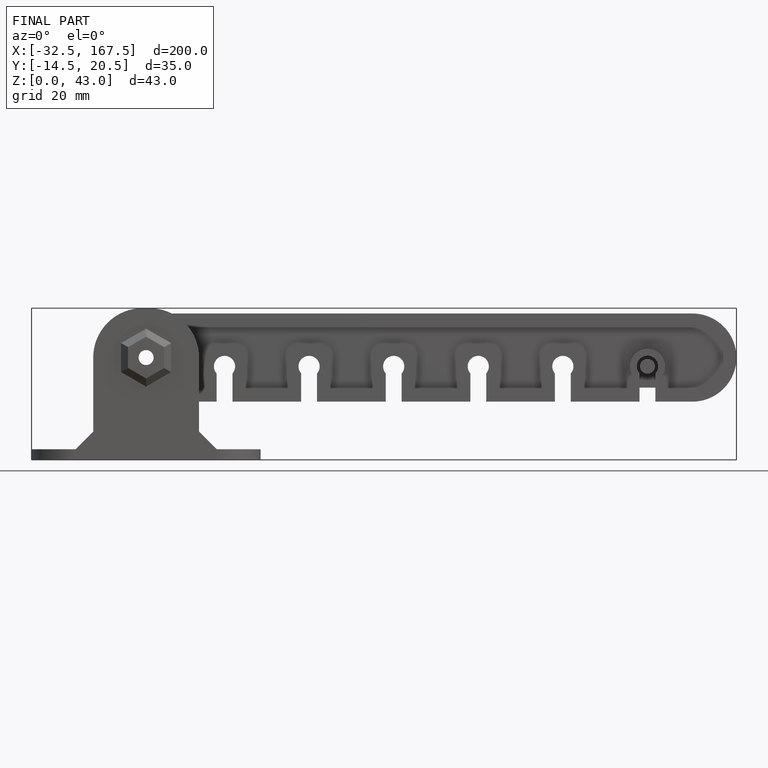
[diagram: finished part — front view with bounding-box wireframe]
